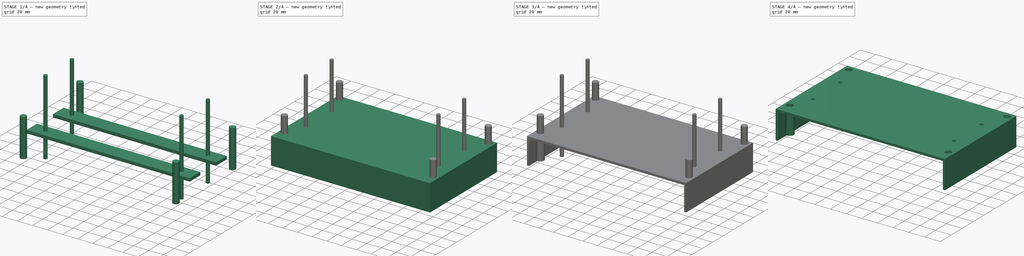
[diagram: build sequence overview — one tinted view per stage of 4, left to right]
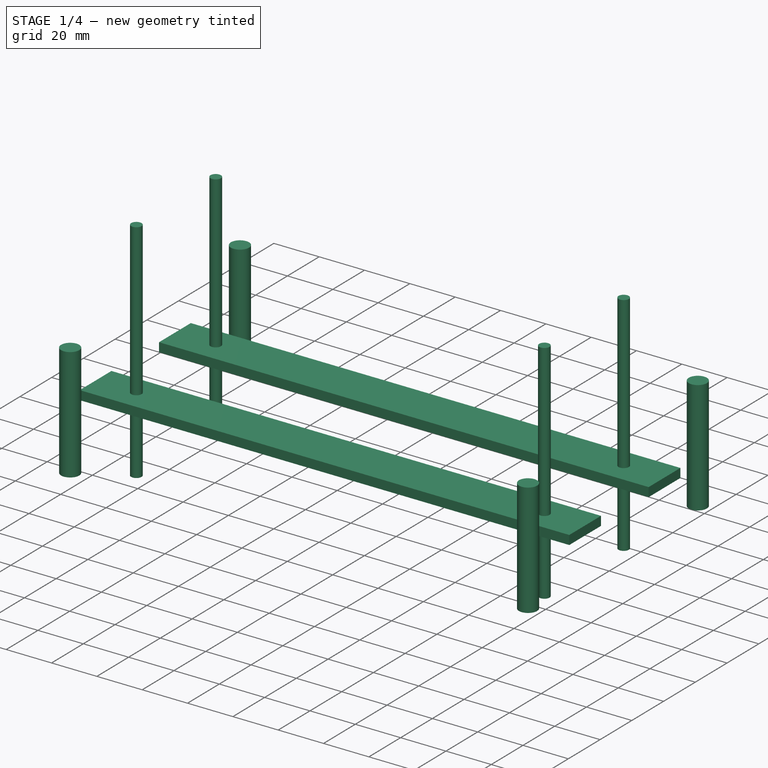
[diagram: stage 1 of 4 — iso view after this stage's code; geometry added in this stage tinted green]
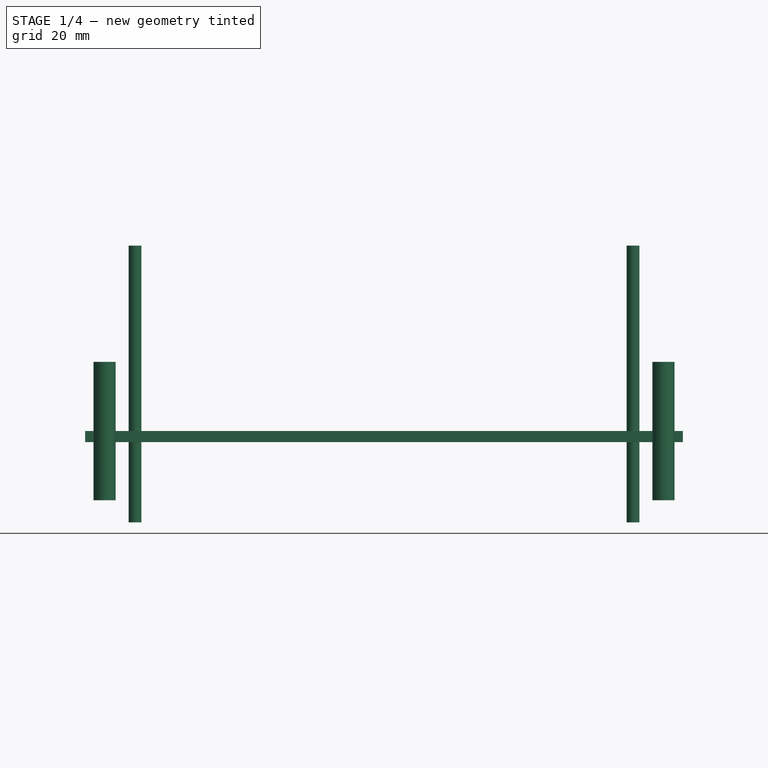
[diagram: stage 1 of 4 — front view after this stage's code; geometry added in this stage tinted green]
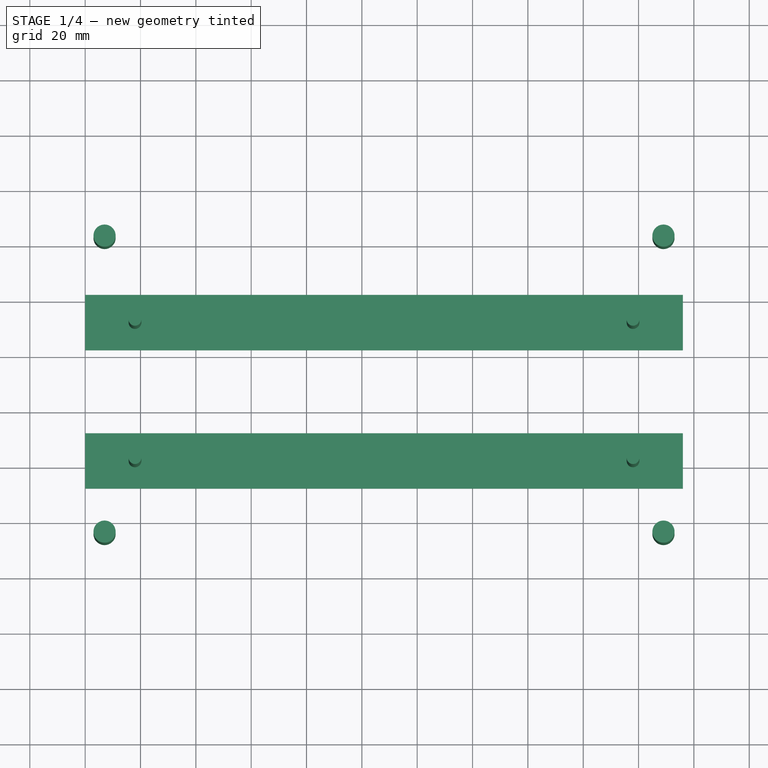
[diagram: stage 1 of 4 — top view after this stage's code; geometry added in this stage tinted green]
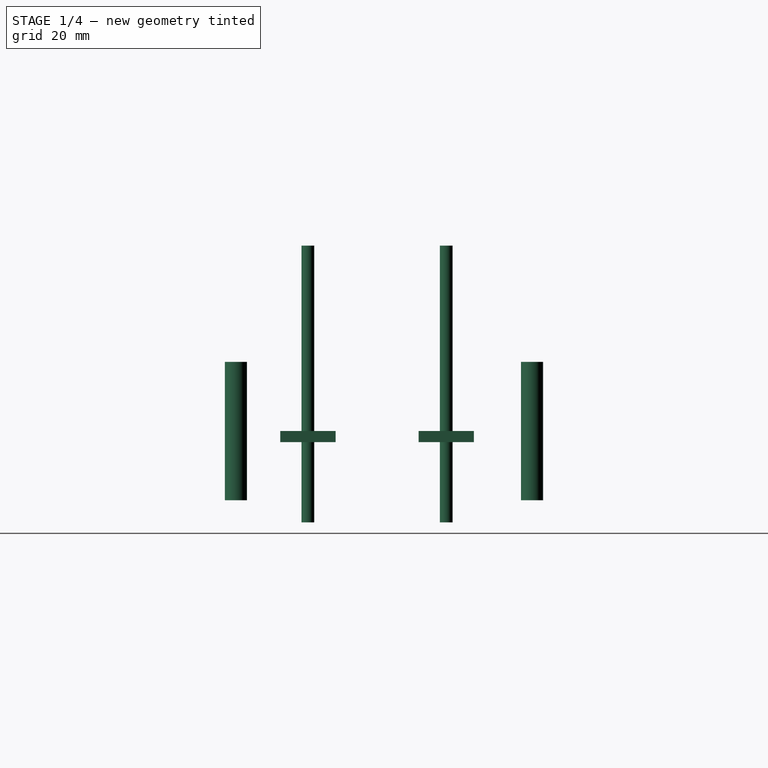
[diagram: stage 1 of 4 — right view after this stage's code; geometry added in this stage tinted green]
FCSTD DOCUMENT  (FreeCAD 0.15R4606 (Git))
Label: electronics_cover
License: All rights reserved
LicenseURL: http://en.wikipedia.org/wiki/All_rights_reserved
objects: Sketcher::SketchObject×7, PartDesign::Pad×7, Part::Cut×4, Part::MultiFuse×2
note: 27 computed .brp shape members not serialized (recipe doc carries the construction recipe); baked Part::Feature solids carry a one-line shape summary decoded from their .brp

FEATURE [Sketcher::SketchObject] Sketch004
  Placement = pos=(0,0,8) rot=(0,0,1;0rad)
  sketch-geometry (8):
    g0: Circle CenterX=7 CenterY=123 CenterZ=0 NormalX=0 NormalY=0 NormalZ=1 Radius=4
    g1: Circle CenterX=7 CenterY=16 CenterZ=0 NormalX=0 NormalY=0 NormalZ=1 Radius=4
    g2: Circle CenterX=209 CenterY=123 CenterZ=0 NormalX=0 NormalY=0 NormalZ=1 Radius=4
    g3: Circle CenterX=209 CenterY=16 CenterZ=0 NormalX=0 NormalY=0 NormalZ=1 Radius=4
    g4: LineSegment [constr] StartX=209 StartY=123 StartZ=0 EndX=7 EndY=123 EndZ=0
    g5: LineSegment [constr] StartX=7 StartY=123 StartZ=0 EndX=7 EndY=16 EndZ=0
    g6: LineSegment [constr] StartX=7 StartY=16 StartZ=0 EndX=209 EndY=16 EndZ=0
    g7: LineSegment [constr] StartX=209 StartY=16 StartZ=0 EndX=209 EndY=123 EndZ=0
  constraints (20):
    c: Coincident(g4,g5)
    c: Coincident(g5,g6)
    c: Coincident(g6,g7)
    c: Coincident(g7,g4)
    c: Horizontal(g4)
    c: Horizontal(g6)
    c: Vertical(g5)
    c: Vertical(g7)
    c: Radius(g0) = 4
    c: Equal(g0,g2)
    c: Equal(g2,g3)
    c: Equal(g3,g1)
    c: Coincident(g0,g4)
    c: Coincident(g1,g5)
    c: Coincident(g2,g4)
    c: Coincident(g3,g6)
    c: Distance(g6) = 202
    c: Distance(g5) = 107
    c: DistanceX(g-1,g1) = 7
    c: DistanceY(g-1,g0) = 123
FEATURE [PartDesign::Pad] Pad004  label="Screw Recesses"
  Length = 50
  Length2 = 100
  Placement = pos=(0,0,8) rot=(0,0,1;0rad)
  Sketch = -> Sketch004
  Type = 0
FEATURE [Sketcher::SketchObject] Sketch005
  Placement = pos=(0,0,29) rot=(0,0,1;0rad)
  sketch-geometry (12):
    g0: LineSegment [constr] StartX=216 StartY=122 StartZ=0 EndX=0 EndY=122 EndZ=0
    g1: LineSegment [constr] StartX=0 StartY=122 StartZ=0 EndX=0 EndY=15 EndZ=0
    g2: LineSegment [constr] StartX=0 StartY=15 StartZ=0 EndX=216 EndY=15 EndZ=0
    g3: LineSegment [constr] StartX=216 StartY=15 StartZ=0 EndX=216 EndY=122 EndZ=0
    g4: LineSegment StartX=0 StartY=102 StartZ=0 EndX=216 EndY=102 EndZ=0
    g5: LineSegment StartX=216 StartY=102 StartZ=0 EndX=216 EndY=82 EndZ=0
    g6: LineSegment StartX=216 StartY=82 StartZ=0 EndX=0 EndY=82 EndZ=0
    g7: LineSegment StartX=0 StartY=82 StartZ=0 EndX=0 EndY=102 EndZ=0
    g8: LineSegment StartX=0 StartY=52 StartZ=0 EndX=216 EndY=52 EndZ=0
    g9: LineSegment StartX=216 StartY=52 StartZ=0 EndX=216 EndY=32 EndZ=0
    g10: LineSegment StartX=216 StartY=32 StartZ=0 EndX=0 EndY=32 EndZ=0
    g11: LineSegment StartX=0 StartY=32 StartZ=0 EndX=0 EndY=52 EndZ=0
  constraints (36):
    c: Coincident(g0,g1)
    c: Coincident(g1,g2)
    c: Coincident(g2,g3)
    c: Coincident(g3,g0)
    c: Horizontal(g0)
    c: Horizontal(g2)
    c: Vertical(g1)
    c: Vertical(g3)
    c: Distance(g2) = 216
    c: Distance(g1) = 107
    c: Coincident(g4,g5)
    c: Coincident(g5,g6)
    c: Coincident(g6,g7)
    c: Coincident(g7,g4)
    c: Horizontal(g4)
    c: Horizontal(g6)
    c: Vertical(g5)
    c: Vertical(g7)
    c: Coincident(g8,g9)
    c: Coincident(g9,g10)
    c: Coincident(g10,g11)
    c: Coincident(g11,g8)
    c: Horizontal(g8)
    c: Horizontal(g10)
    c: Vertical(g9)
    c: Vertical(g11)
    c: DistanceY(g7) = 20
    c: DistanceY(g11) = 20
    c: PointOnObject(g8,g1)
    c: PointOnObject(g4,g1)
    c: PointOnObject(g4,g3)
    c: PointOnObject(g8,g3)
    c: DistanceY(g4,g8) = -50
    c: DistanceY(g-1,g1) = 15
    c: DistanceX(g-1,g1) = 0
    c: DistanceY(g0,g4) = -20
FEATURE [PartDesign::Pad] Pad005  label="Crossbeams"
  Length = 4
  Length2 = 100
  Placement = pos=(0,0,29) rot=(0,0,1;0rad)
  Sketch = -> Sketch005
  Type = 0
FEATURE [Sketcher::SketchObject] Sketch006
  sketch-geometry (8):
    g0: LineSegment [constr] StartX=198 StartY=42 StartZ=0 EndX=18 EndY=42 EndZ=0
    g1: LineSegment [constr] StartX=18 StartY=42 StartZ=0 EndX=18 EndY=92 EndZ=0
    g2: LineSegment [constr] StartX=18 StartY=92 StartZ=0 EndX=198 EndY=92 EndZ=0
    g3: LineSegment [constr] StartX=198 StartY=92 StartZ=0 EndX=198 EndY=42 EndZ=0
    g4: Circle CenterX=18 CenterY=42 CenterZ=0 NormalX=0 NormalY=0 NormalZ=1 Radius=2.3
    g5: Circle CenterX=198 CenterY=42 CenterZ=0 NormalX=0 NormalY=0 NormalZ=1 Radius=2.3
    g6: Circle CenterX=18 CenterY=92 CenterZ=0 NormalX=0 NormalY=0 NormalZ=1 Radius=2.3
    g7: Circle CenterX=198 CenterY=92 CenterZ=0 NormalX=0 NormalY=0 NormalZ=1 Radius=2.3
  constraints (20):
    c: Coincident(g0,g1)
    c: Coincident(g1,g2)
    c: Coincident(g2,g3)
    c: Coincident(g3,g0)
    c: Horizontal(g0)
    c: Horizontal(g2)
    c: Vertical(g1)
    c: Vertical(g3)
    c: Distance(g0) = 180
    c: DistanceX(g-2,g1) = 18
    c: Equal(g7,g6)
    c: Equal(g6,g4)
    c: Equal(g4,g5)
    c: Radius(g4) = 2.3
    c: Coincident(g0,g4)
    c: Coincident(g6,g1)
    c: Coincident(g7,g2)
    c: Coincident(g5,g0)
    c: Distance(g1) = 50
    c: DistanceY(g-1,g0) = 42
FEATURE [PartDesign::Pad] Pad006  label="Sensor Head Mount Holes"
  Length = 100
  Length2 = 100
  Sketch = -> Sketch006
  Type = 0
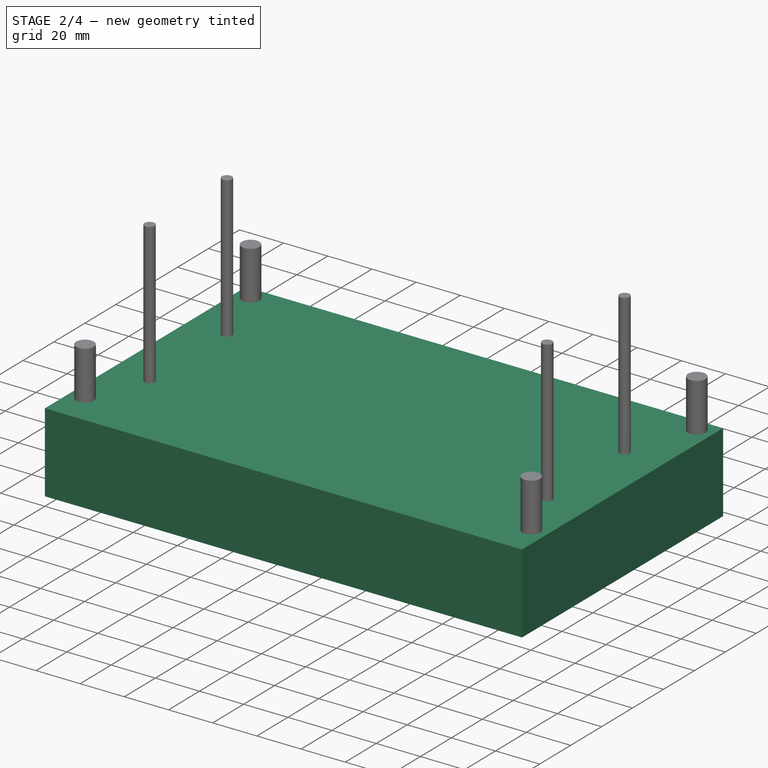
[diagram: stage 2 of 4 — iso view after this stage's code; geometry added in this stage tinted green]
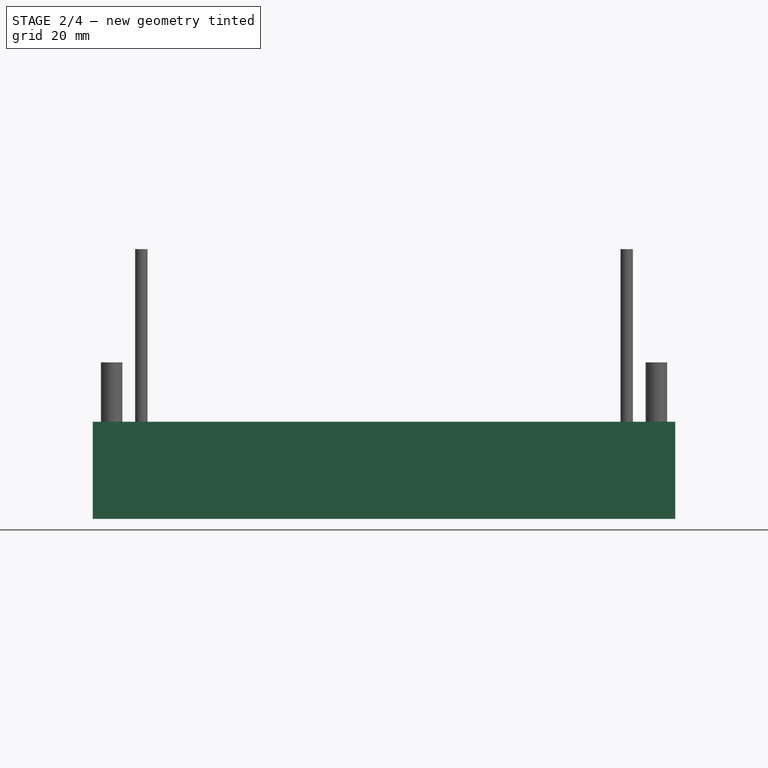
[diagram: stage 2 of 4 — front view after this stage's code; geometry added in this stage tinted green]
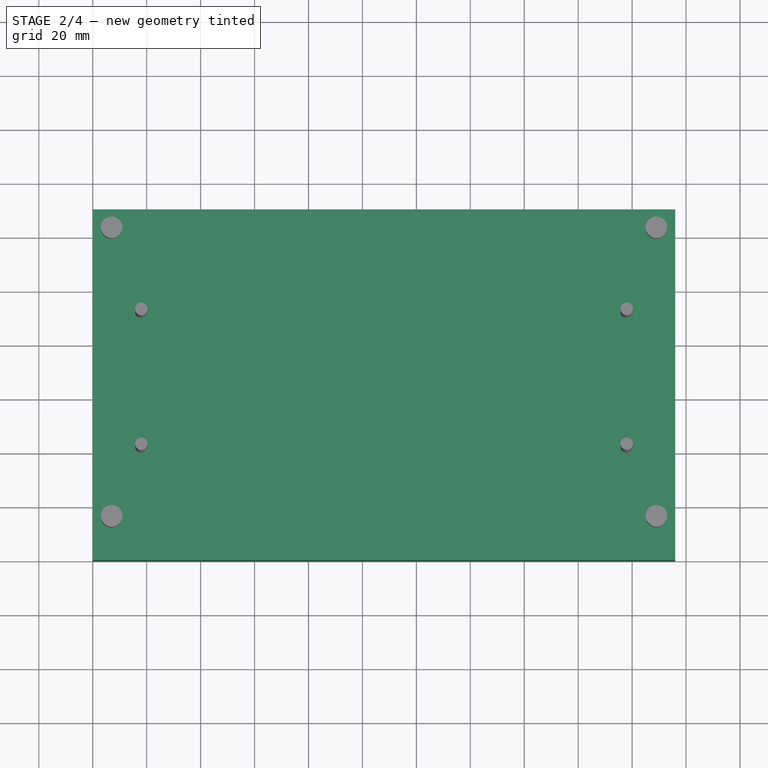
[diagram: stage 2 of 4 — top view after this stage's code; geometry added in this stage tinted green]
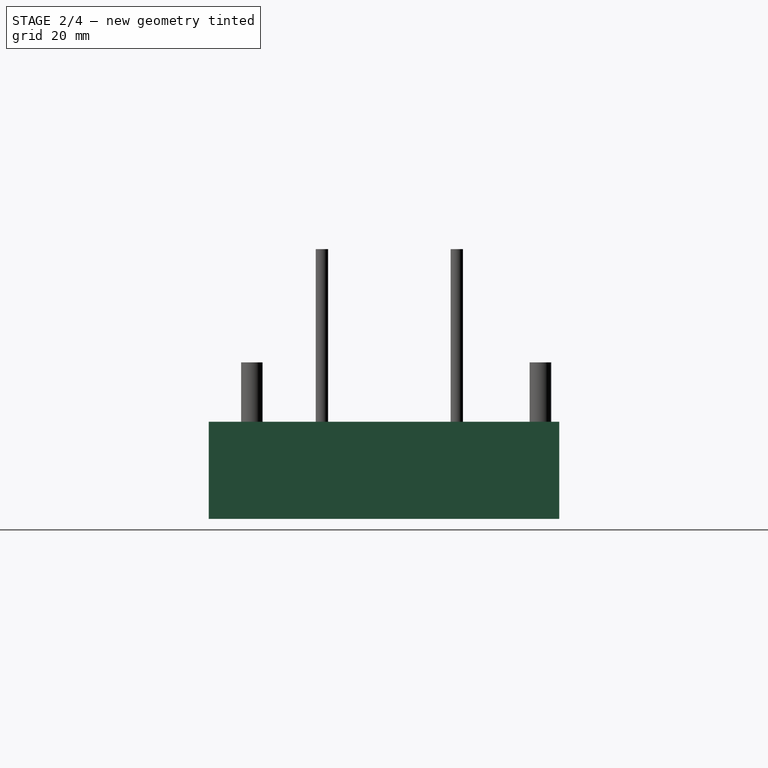
[diagram: stage 2 of 4 — right view after this stage's code; geometry added in this stage tinted green]
FEATURE [Sketcher::SketchObject] Sketch
  sketch-geometry (4):
    g0: LineSegment StartX=216 StartY=130 StartZ=0 EndX=0 EndY=130 EndZ=0
    g1: LineSegment StartX=0 StartY=130 StartZ=0 EndX=0 EndY=0 EndZ=0
    g2: LineSegment StartX=0 StartY=0 StartZ=0 EndX=216 EndY=0 EndZ=0
    g3: LineSegment StartX=216 StartY=0 StartZ=0 EndX=216 EndY=130 EndZ=0
  constraints (11):
    c: Coincident(g0,g1)
    c: Coincident(g1,g2)
    c: Coincident(g2,g3)
    c: Coincident(g3,g0)
    c: Horizontal(g0)
    c: Horizontal(g2)
    c: Vertical(g1)
    c: Vertical(g3)
    c: Coincident(g1,g-1)
    c: Distance(g1) = 130
    c: Distance(g0) = 216
FEATURE [PartDesign::Pad] Pad  label="Body"
  Length = 36
  Length2 = 100
  Sketch = -> Sketch
  Type = 0
FEATURE [Sketcher::SketchObject] Sketch001
  sketch-geometry (4):
    g0: LineSegment StartX=213.3 StartY=127 StartZ=0 EndX=213.3 EndY=0 EndZ=0
    g1: LineSegment StartX=2.7 StartY=0 StartZ=0 EndX=2.7 EndY=127 EndZ=0
    g2: LineSegment StartX=2.7 StartY=127 StartZ=0 EndX=213.3 EndY=127 EndZ=0
    g3: LineSegment StartX=2.7 StartY=0 StartZ=0 EndX=213.3 EndY=0 EndZ=0
  constraints (12):
    c: Vertical(g0)
    c: Vertical(g1)
    c: Horizontal(g2)
    c: Coincident(g1,g2)
    c: Coincident(g0,g2)
    c: Horizontal(g3)
    c: Coincident(g1,g3)
    c: Coincident(g0,g3)
    c: PointOnObject(g1,g-1)
    c: DistanceX(g-1,g1) = 2.7
    c: DistanceX(g1,g0) = 210.6
    c: DistanceY(g1,g1) = -127
FEATURE [PartDesign::Pad] Pad001  label="Interior Hole"
  Length = 33
  Length2 = 100
  Sketch = -> Sketch001
  Type = 0
FEATURE [Sketcher::SketchObject] Sketch002
  Placement = pos=(0,0,3) rot=(0,0,1;0rad)
  sketch-geometry (8):
    g0: Circle CenterX=7 CenterY=123 CenterZ=0 NormalX=0 NormalY=0 NormalZ=1 Radius=5
    g1: Circle CenterX=7 CenterY=16 CenterZ=0 NormalX=0 NormalY=0 NormalZ=1 Radius=5
    g2: Circle CenterX=209 CenterY=123 CenterZ=0 NormalX=0 NormalY=0 NormalZ=1 Radius=5
    g3: Circle CenterX=209 CenterY=16 CenterZ=0 NormalX=0 NormalY=0 NormalZ=1 Radius=5
    g4: LineSegment [constr] StartX=209 StartY=123 StartZ=0 EndX=7 EndY=123 EndZ=0
    g5: LineSegment [constr] StartX=7 StartY=123 StartZ=0 EndX=7 EndY=16 EndZ=0
    g6: LineSegment [constr] StartX=7 StartY=16 StartZ=0 EndX=209 EndY=16 EndZ=0
    g7: LineSegment [constr] StartX=209 StartY=16 StartZ=0 EndX=209 EndY=123 EndZ=0
  constraints (20):
    c: Coincident(g4,g5)
    c: Coincident(g5,g6)
    c: Coincident(g6,g7)
    c: Coincident(g7,g4)
    c: Horizontal(g4)
    c: Horizontal(g6)
    c: Vertical(g5)
    c: Vertical(g7)
    c: Radius(g0) = 5
    c: Equal(g0,g2)
    c: Equal(g2,g3)
    c: Equal(g3,g1)
    c: Coincident(g0,g4)
    c: Coincident(g1,g5)
    c: Coincident(g2,g4)
    c: Coincident(g3,g6)
    c: Distance(g6) = 202
    c: Distance(g5) = 107
    c: DistanceX(g-1,g1) = 7
    c: DistanceY(g-1,g0) = 123
FEATURE [PartDesign::Pad] Pad002  label="Pylons"
  Length = 30
  Length2 = 100
  Placement = pos=(0,0,3) rot=(0,0,1;0rad)
  Sketch = -> Sketch002
  Type = 0
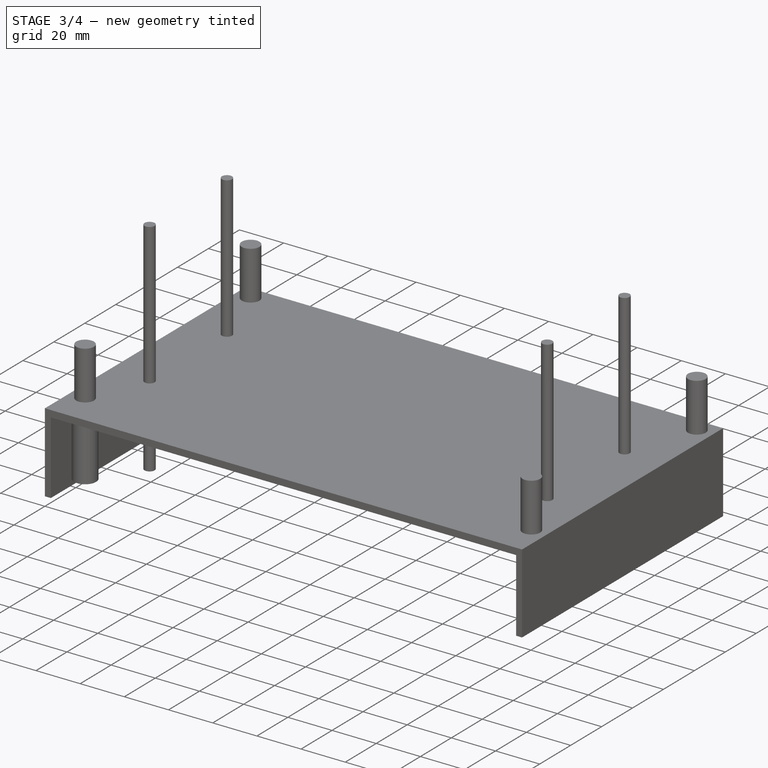
[diagram: stage 3 of 4 — iso view after this stage's code; geometry added in this stage tinted green]
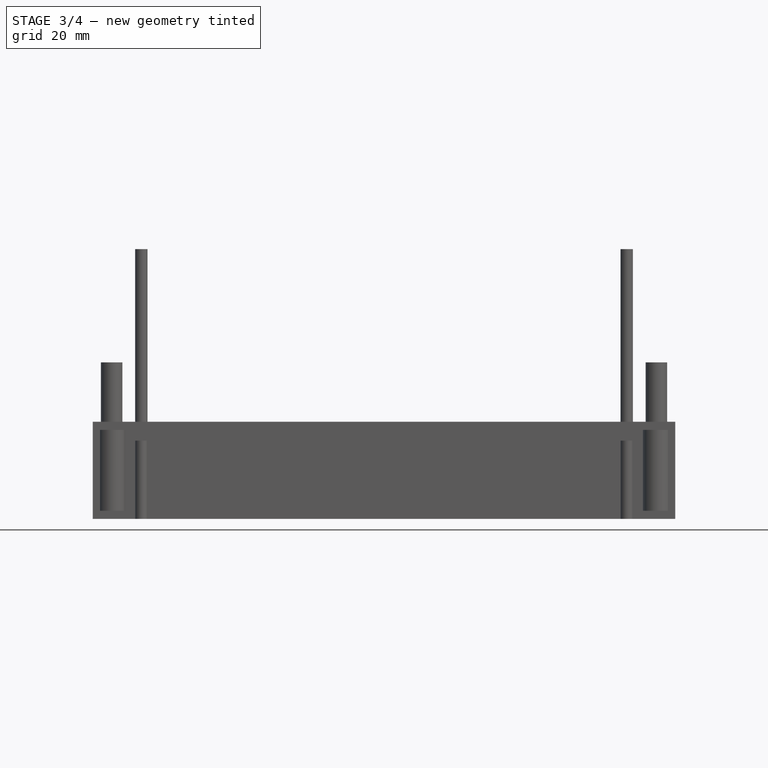
[diagram: stage 3 of 4 — front view after this stage's code; geometry added in this stage tinted green]
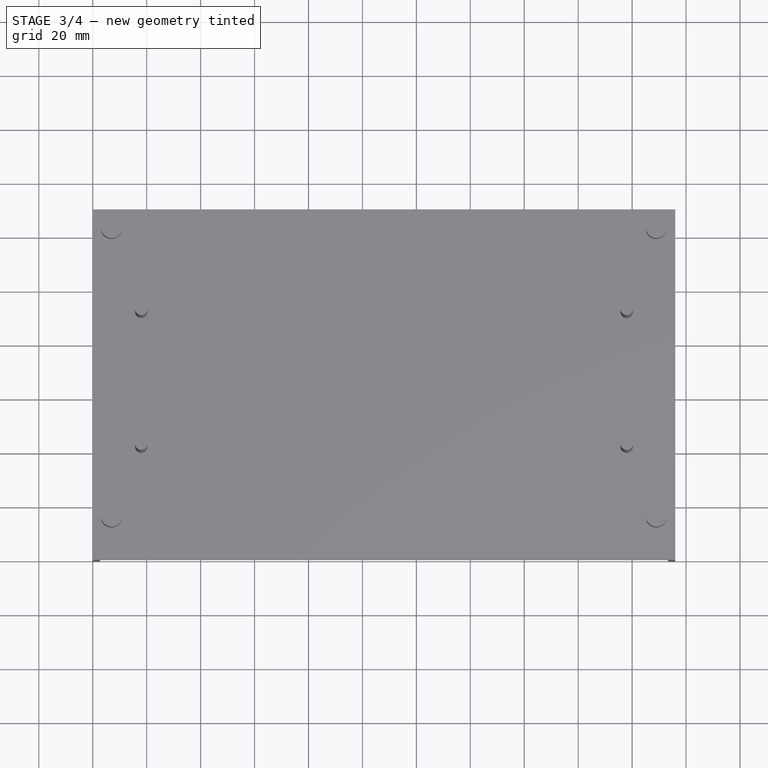
[diagram: stage 3 of 4 — top view after this stage's code; geometry added in this stage tinted green]
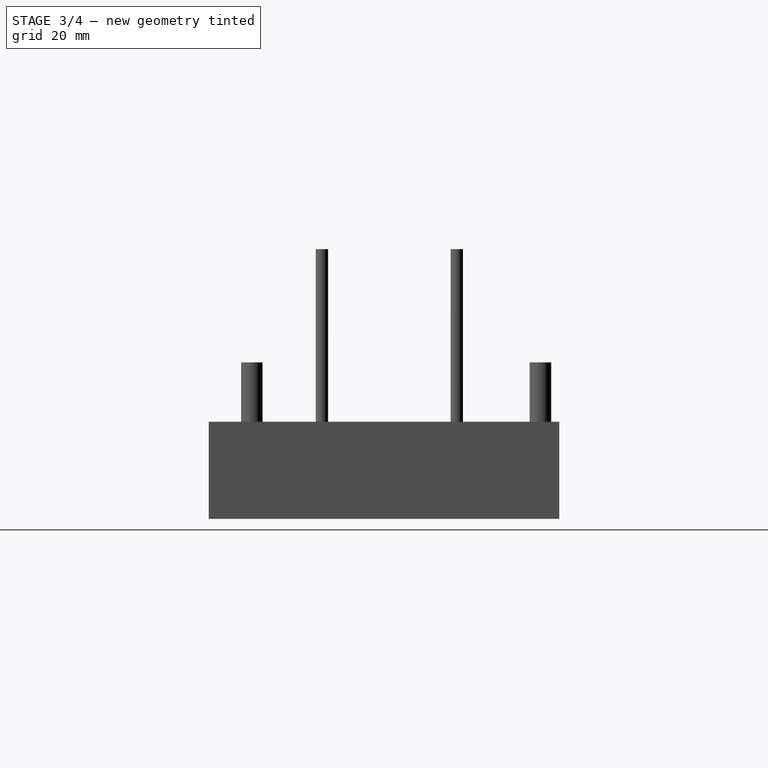
[diagram: stage 3 of 4 — right view after this stage's code; geometry added in this stage tinted green]
FEATURE [Part::Cut] Cut  label="Shell"
  Base = -> Pad
  Tool = -> Pad001
FEATURE [Sketcher::SketchObject] Sketch003
  sketch-geometry (8):
    g0: Circle CenterX=7 CenterY=123 CenterZ=0 NormalX=0 NormalY=0 NormalZ=1 Radius=1.5
    g1: Circle CenterX=7 CenterY=16 CenterZ=0 NormalX=0 NormalY=0 NormalZ=1 Radius=1.5
    g2: Circle CenterX=209 CenterY=123 CenterZ=0 NormalX=0 NormalY=0 NormalZ=1 Radius=1.5
    g3: Circle CenterX=209 CenterY=16 CenterZ=0 NormalX=0 NormalY=0 NormalZ=1 Radius=1.5
    g4: LineSegment [constr] StartX=209 StartY=123 StartZ=0 EndX=7 EndY=123 EndZ=0
    g5: LineSegment [constr] StartX=7 StartY=123 StartZ=0 EndX=7 EndY=16 EndZ=0
    g6: LineSegment [constr] StartX=7 StartY=16 StartZ=0 EndX=209 EndY=16 EndZ=0
    g7: LineSegment [constr] StartX=209 StartY=16 StartZ=0 EndX=209 EndY=123 EndZ=0
  constraints (20):
    c: Coincident(g4,g5)
    c: Coincident(g5,g6)
    c: Coincident(g6,g7)
    c: Coincident(g7,g4)
    c: Horizontal(g4)
    c: Horizontal(g6)
    c: Vertical(g5)
    c: Vertical(g7)
    c: Radius(g0) = 1.5
    c: Equal(g0,g2)
    c: Equal(g2,g3)
    c: Equal(g3,g1)
    c: Coincident(g0,g4)
    c: Coincident(g1,g5)
    c: Coincident(g2,g4)
    c: Coincident(g3,g6)
    c: Distance(g6) = 202
    c: Distance(g5) = 107
    c: DistanceX(g-1,g1) = 7
    c: DistanceY(g-1,g0) = 123
FEATURE [PartDesign::Pad] Pad003  label="Screw Holes"
  Length = 100
  Length2 = 100
  Sketch = -> Sketch003
  Type = 0
FEATURE [Part::MultiFuse] Fusion
  Shapes = -> [Cut,Pad002]
FEATURE [Part::Cut] Cut001
  Base = -> Fusion
  Tool = -> Pad003
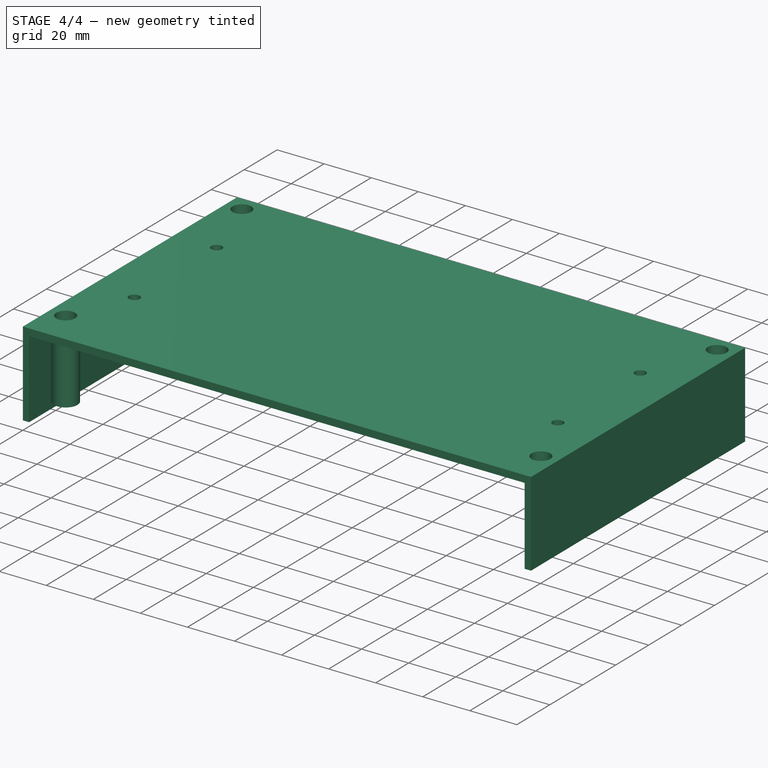
[diagram: stage 4 of 4 — iso view after this stage's code; geometry added in this stage tinted green]
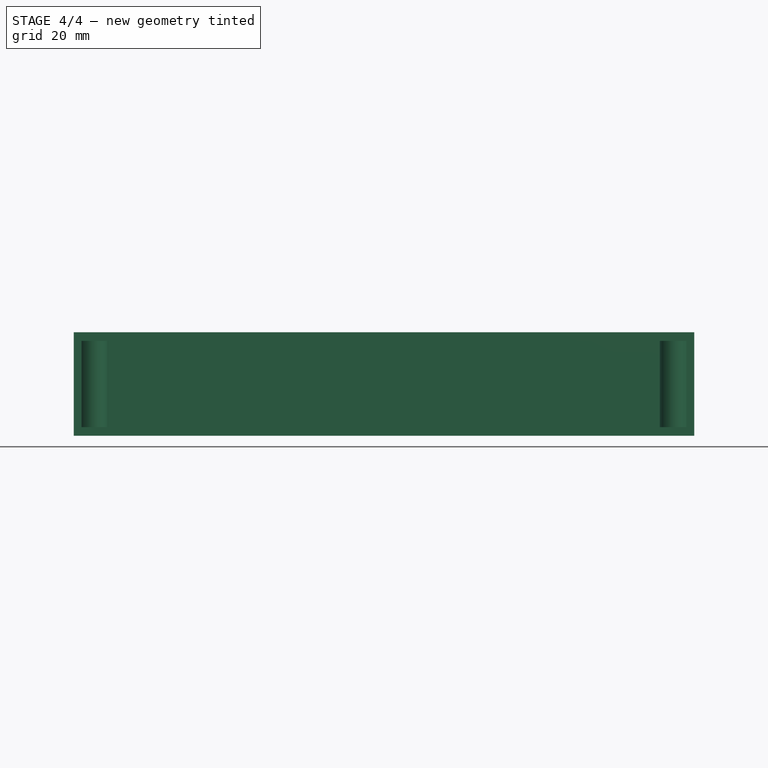
[diagram: stage 4 of 4 — front view after this stage's code; geometry added in this stage tinted green]
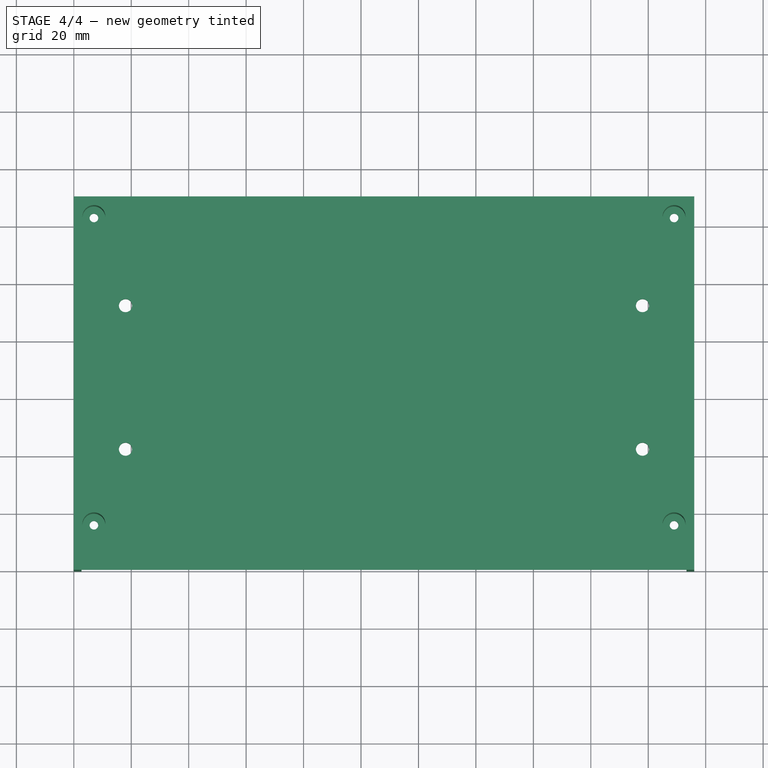
[diagram: stage 4 of 4 — top view after this stage's code; geometry added in this stage tinted green]
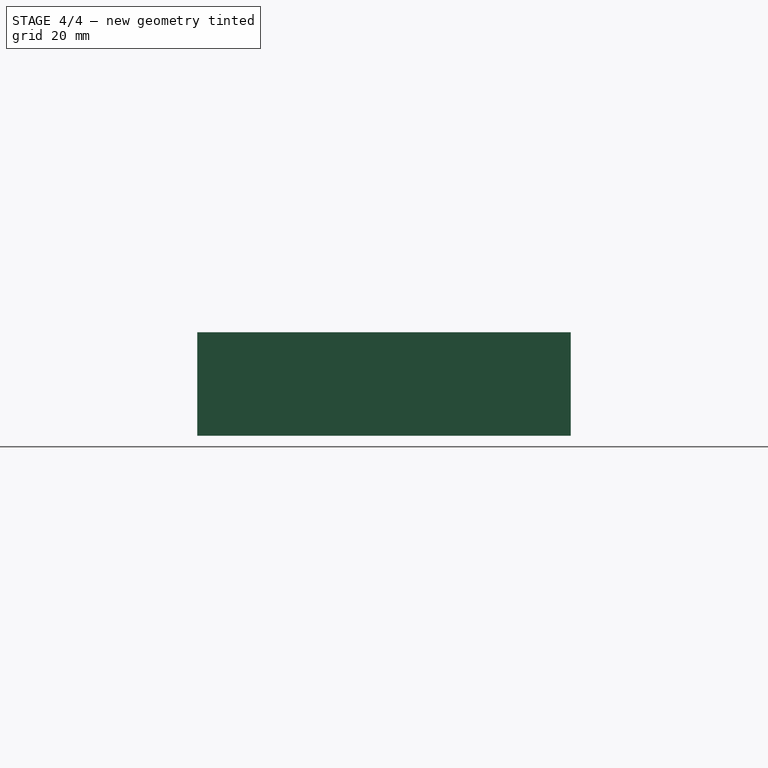
[diagram: stage 4 of 4 — right view after this stage's code; geometry added in this stage tinted green]
FEATURE [Part::Cut] Cut002
  Base = -> Cut001
  Tool = -> Pad004
FEATURE [Part::MultiFuse] Fusion001
  Shapes = -> [Cut002,Pad005]
FEATURE [Part::Cut] Cut003
  Base = -> Fusion001
  Tool = -> Pad006
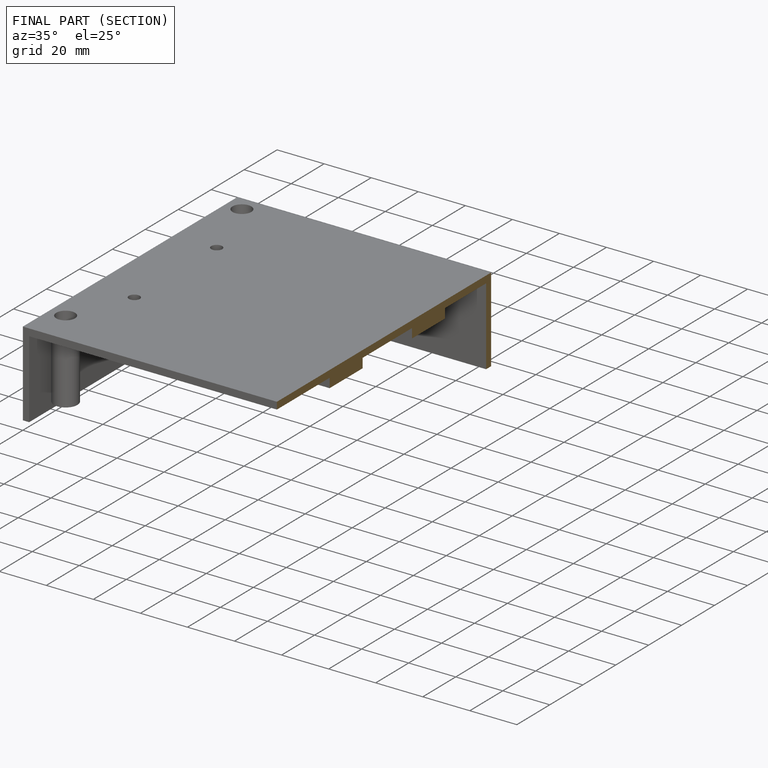
[diagram: finished part — half-section view (interior)]
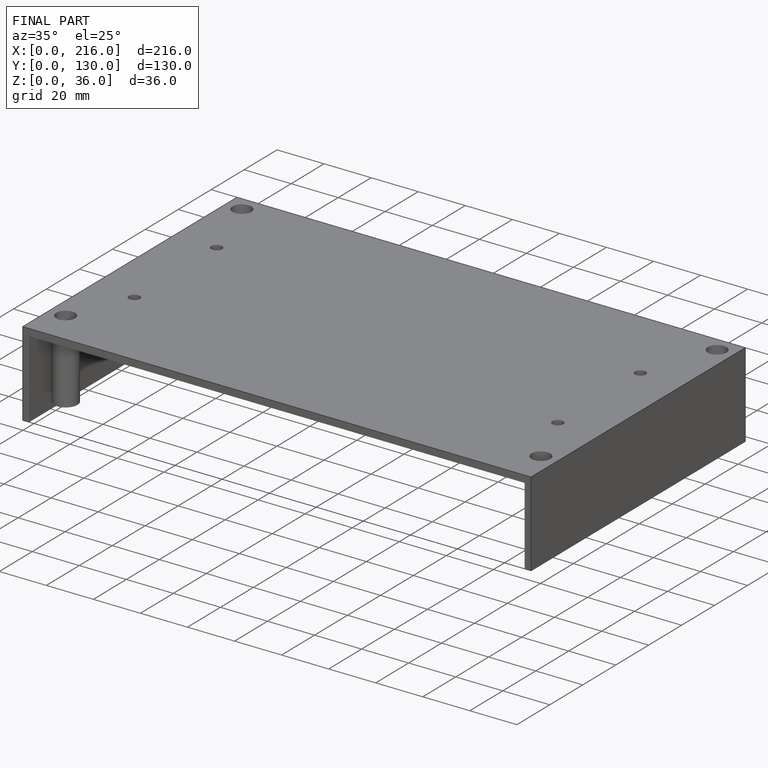
[diagram: finished part — iso view with bounding-box wireframe]
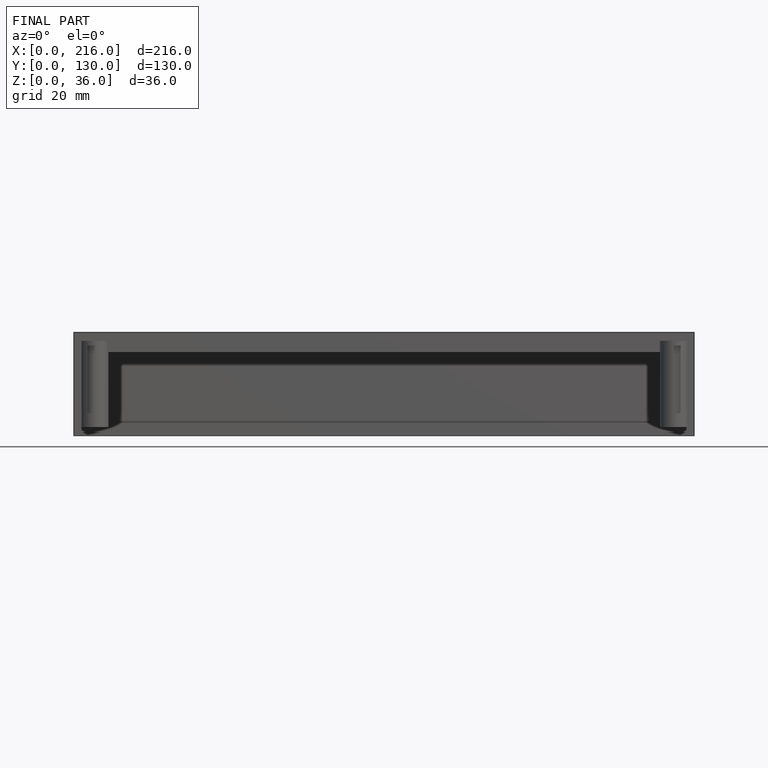
[diagram: finished part — front view with bounding-box wireframe]
